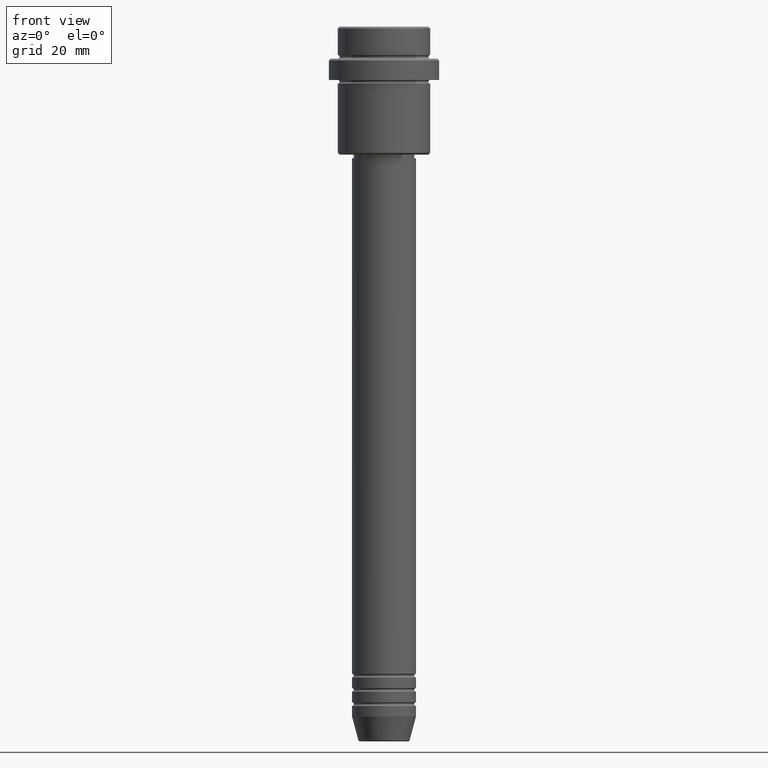
[diagram: clean part render]
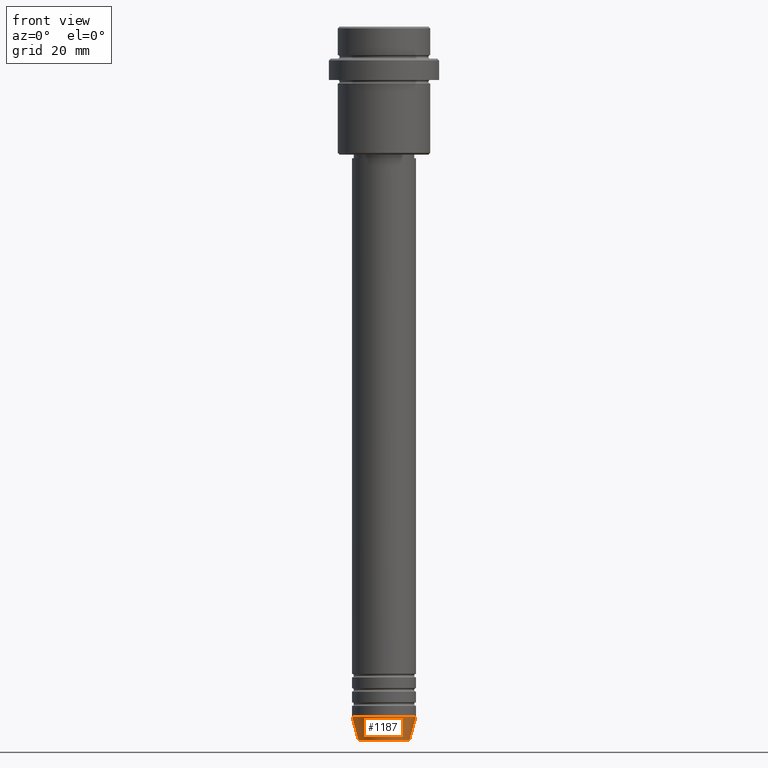
[diagram: same view with one face highlighted and labeled with its STEP entity id]
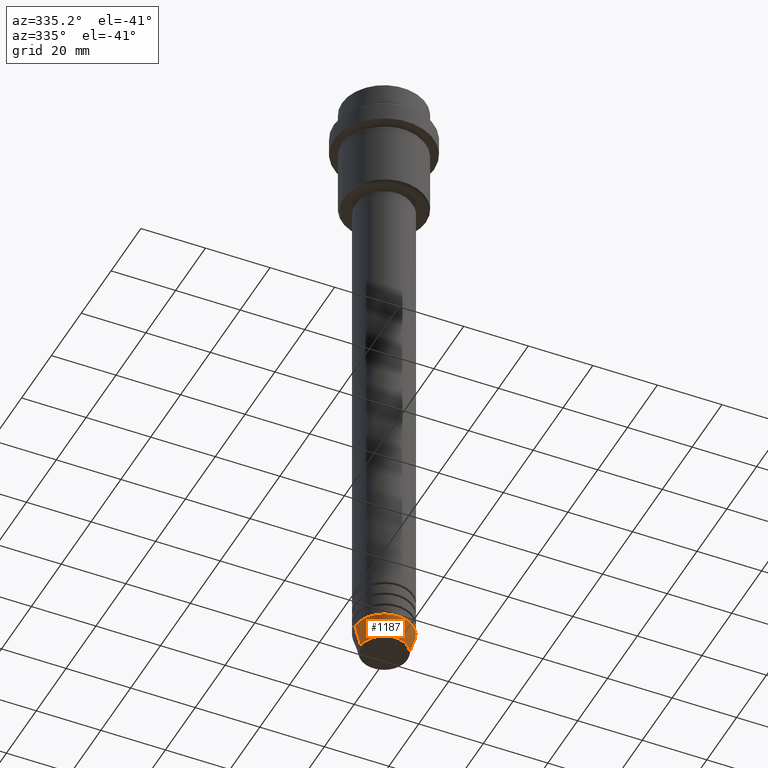
[diagram: same view with one face highlighted and labeled with its STEP entity id]
A machine part, front view. The second image highlights one B-rep face of the part: STEP entity #1187.
A second angle (auxiliary view) of the same face is appended — the face is thin or edge-on in the first view.
In plain terms, the highlighted conical surface has half-angle 15 deg.
Its self-contained STEP definition (entity closure, byte-faithful):
#4 = CARTESIAN_POINT ( 'NONE',  ( 9.000000000000000000, 0.000000000000000000, -194.0000000000000000 ) ) ;
#64 = DIRECTION ( 'NONE',  ( 1.000000000000000000, 0.000000000000000000, 0.000000000000000000 ) ) ;
#105 = DIRECTION ( 'NONE',  ( 1.000000000000000000, 0.000000000000000000, 0.000000000000000000 ) ) ;
#123 = VERTEX_POINT ( 'NONE', #382 ) ;
#195 = AXIS2_PLACEMENT_3D ( 'NONE', #1319, #1095, #105 ) ;
#212 = DIRECTION ( 'NONE',  ( -0.000000000000000000, -0.000000000000000000, 1.000000000000000000 ) ) ;
#255 = AXIS2_PLACEMENT_3D ( 'NONE', #402, #212, #64 ) ;
#262 = EDGE_CURVE ( 'NONE', #570, #123, #577, .T. ) ;
#292 = EDGE_CURVE ( 'NONE', #1141, #1120, #1060, .T. ) ;
#303 = DIRECTION ( 'NONE',  ( 1.000000000000000000, 0.000000000000000000, 0.000000000000000000 ) ) ;
#368 = LINE ( 'NONE', #1133, #1310 ) ;
#382 = CARTESIAN_POINT ( 'NONE',  ( 7.223655072137188604, 0.000000000000000000, -200.6294095225512990 ) ) ;
#402 = CARTESIAN_POINT ( 'NONE',  ( 0.000000000000000000, 0.000000000000000000, -194.0000000000000000 ) ) ;
#434 = CARTESIAN_POINT ( 'NONE',  ( 0.000000000000000000, 0.000000000000000000, -200.6294095225512990 ) ) ;
#454 = ORIENTED_EDGE ( 'NONE', *, *, #262, .T. ) ;
#456 = CARTESIAN_POINT ( 'NONE',  ( -9.000000000000000000, 1.102182119232617714E-15, -194.0000000000000000 ) ) ;
#467 = AXIS2_PLACEMENT_3D ( 'NONE', #434, #753, #303 ) ;
#544 = FACE_OUTER_BOUND ( 'NONE', #1251, .T. ) ;
#570 = VERTEX_POINT ( 'NONE', #711 ) ;
#577 = CIRCLE ( 'NONE', #467, 7.223655072137188604 ) ;
#658 = CARTESIAN_POINT ( 'NONE',  ( -9.000000000000000000, 1.102182119232617714E-15, -194.0000000000000000 ) ) ;
#711 = CARTESIAN_POINT ( 'NONE',  ( -7.223655072137189492, 9.934123627281765110E-16, -200.6294095225512990 ) ) ;
#753 = DIRECTION ( 'NONE',  ( -0.000000000000000000, -0.000000000000000000, 1.000000000000000000 ) ) ;
#863 = VECTOR ( 'NONE', #899, 1000.000000000000000 ) ;
#887 = ORIENTED_EDGE ( 'NONE', *, *, #292, .F. ) ;
#899 = DIRECTION ( 'NONE',  ( -0.2588190451025213501, 3.169619151431772337E-17, 0.9659258262890680902 ) ) ;
#1035 = CONICAL_SURFACE ( 'NONE', #195, 9.000000000000000000, 0.2617993877991500740 ) ;
#1060 = CIRCLE ( 'NONE', #255, 9.000000000000000000 ) ;
#1078 = ORIENTED_EDGE ( 'NONE', *, *, #1260, .T. ) ;
#1095 = DIRECTION ( 'NONE',  ( -0.000000000000000000, -0.000000000000000000, 1.000000000000000000 ) ) ;
#1120 = VERTEX_POINT ( 'NONE', #4 ) ;
#1133 = CARTESIAN_POINT ( 'NONE',  ( 9.000000000000000000, 0.000000000000000000, -194.0000000000000000 ) ) ;
#1138 = DIRECTION ( 'NONE',  ( 0.2588190451025213501, 0.000000000000000000, 0.9659258262890680902 ) ) ;
#1141 = VERTEX_POINT ( 'NONE', #658 ) ;
#1163 = ORIENTED_EDGE ( 'NONE', *, *, #1211, .F. ) ;
#1187 = ADVANCED_FACE ( 'NONE', ( #544 ), #1035, .T. ) ;
#1211 = EDGE_CURVE ( 'NONE', #570, #1141, #1304, .T. ) ;
#1251 = EDGE_LOOP ( 'NONE', ( #1163, #454, #1078, #887 ) ) ;
#1260 = EDGE_CURVE ( 'NONE', #123, #1120, #368, .T. ) ;
#1304 = LINE ( 'NONE', #456, #863 ) ;
#1310 = VECTOR ( 'NONE', #1138, 1000.000000000000000 ) ;
#1319 = CARTESIAN_POINT ( 'NONE',  ( 0.000000000000000000, 0.000000000000000000, -194.0000000000000000 ) ) ;